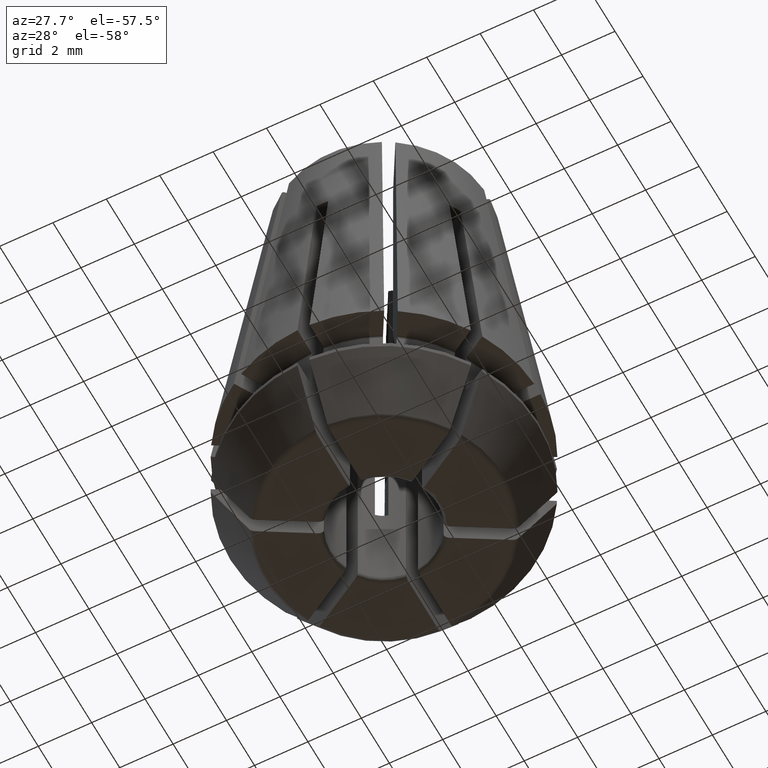
[diagram: clean part render]
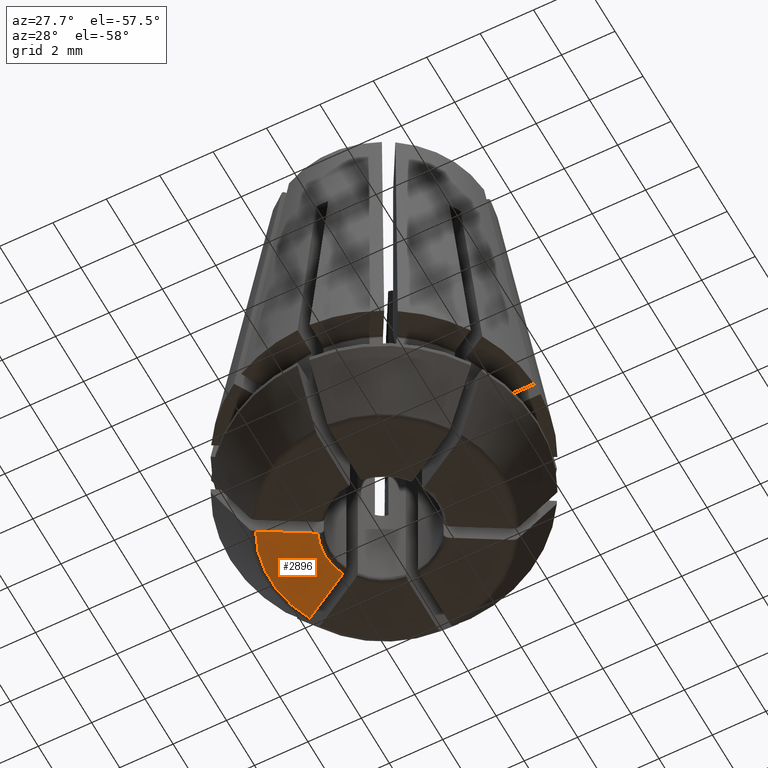
[diagram: same view with one face highlighted and labeled with its STEP entity id]
A machine part, auxiliary view. The second image highlights one B-rep face of the part: STEP entity #2896.
In plain terms, the highlighted planar face has unit normal (0, 0, 1).
Its self-contained STEP definition (entity closure, byte-faithful):
#201=LINE('',#5277,#369);
#202=LINE('',#5281,#370);
#369=VECTOR('',#3874,1000.);
#370=VECTOR('',#3877,1000.);
#449=PLANE('',#3190);
#496=CIRCLE('',#2995,2.2);
#595=CIRCLE('',#3191,4.26228675972853);
#1183=ORIENTED_EDGE('',*,*,#1910,.F.);
#1184=ORIENTED_EDGE('',*,*,#1911,.F.);
#1185=ORIENTED_EDGE('',*,*,#1912,.T.);
#1186=ORIENTED_EDGE('',*,*,#1593,.T.);
#1593=EDGE_CURVE('',#2046,#2045,#496,.T.);
#1910=EDGE_CURVE('',#2259,#2045,#201,.T.);
#1911=EDGE_CURVE('',#2260,#2259,#595,.T.);
#1912=EDGE_CURVE('',#2260,#2046,#202,.T.);
#2045=VERTEX_POINT('',#4247);
#2046=VERTEX_POINT('',#4249);
#2259=VERTEX_POINT('',#5278);
#2260=VERTEX_POINT('',#5280);
#2538=EDGE_LOOP('',(#1183,#1184,#1185,#1186));
#2696=FACE_BOUND('',#2538,.T.);
#2896=ADVANCED_FACE('',(#2696),#449,.F.);
#2995=AXIS2_PLACEMENT_3D('',#4248,#3358,#3359);
#3190=AXIS2_PLACEMENT_3D('',#5276,#3872,#3873);
#3191=AXIS2_PLACEMENT_3D('',#5279,#3875,#3876);
#3358=DIRECTION('',(0.,0.,1.));
#3359=DIRECTION('',(1.,0.,0.));
#3872=DIRECTION('',(0.,0.,1.));
#3873=DIRECTION('',(1.,0.,0.));
#3874=DIRECTION('',(0.866025403784438,0.5,0.));
#3875=DIRECTION('',(0.,0.,1.));
#3876=DIRECTION('',(1.,0.,0.));
#3877=DIRECTION('',(0.866025403784439,-0.5,0.));
#4247=CARTESIAN_POINT('',(-2.00776548272255,-0.899376320784168,-4.50000000000063));
#4248=CARTESIAN_POINT('',(0.,0.,-4.5));
#4249=CARTESIAN_POINT('',(-2.00776548272268,0.899376320784241,-4.5));
#5276=CARTESIAN_POINT('',(0.,0.,-4.5));
#5277=CARTESIAN_POINT('',(-0.112499999999996,0.194855715851492,-4.5));
#5278=CARTESIAN_POINT('',(-3.79860194739889,-1.93331623573965,-4.5));
#5279=CARTESIAN_POINT('',(0.,0.,-4.5));
#5280=CARTESIAN_POINT('',(-3.79860194739888,1.93331623573965,-4.5));
#5281=CARTESIAN_POINT('',(-0.112500000000001,-0.194855715851501,-4.5));